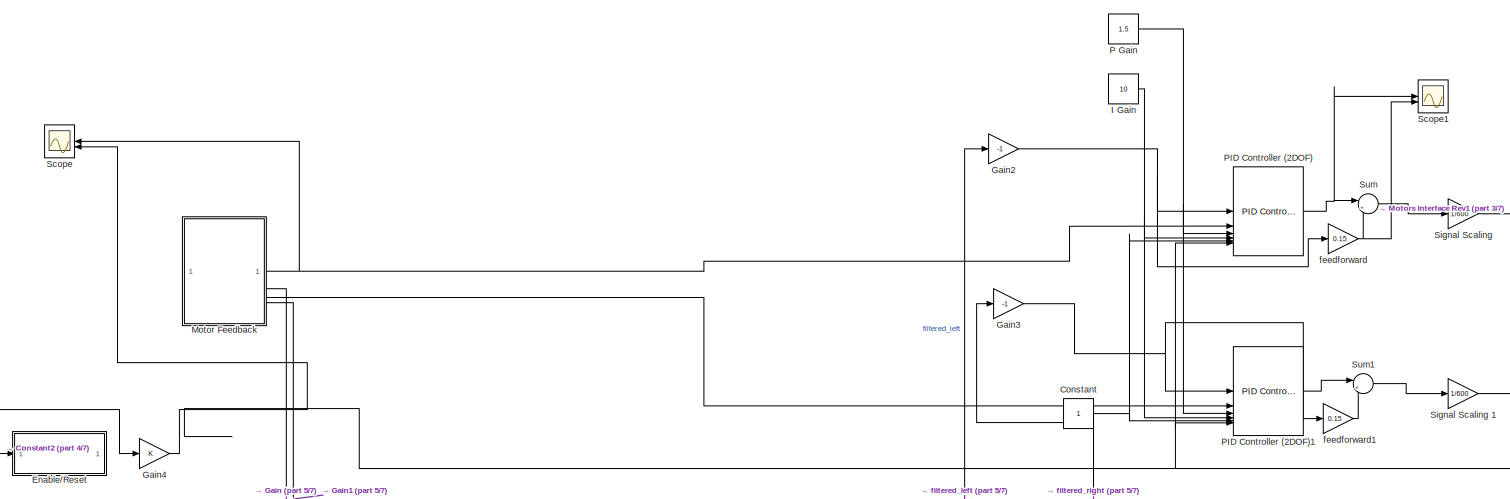
[diagram: root canvas - part 1/7, top center region]
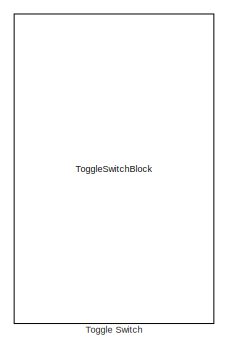
[diagram: root canvas - part 2/7, top left region]
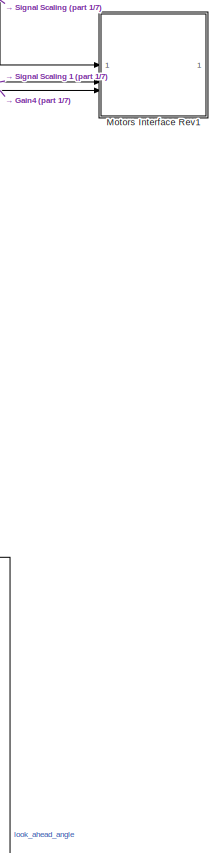
[diagram: root canvas - part 3/7, middle right region]
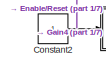
[diagram: root canvas - part 4/7, top left region]
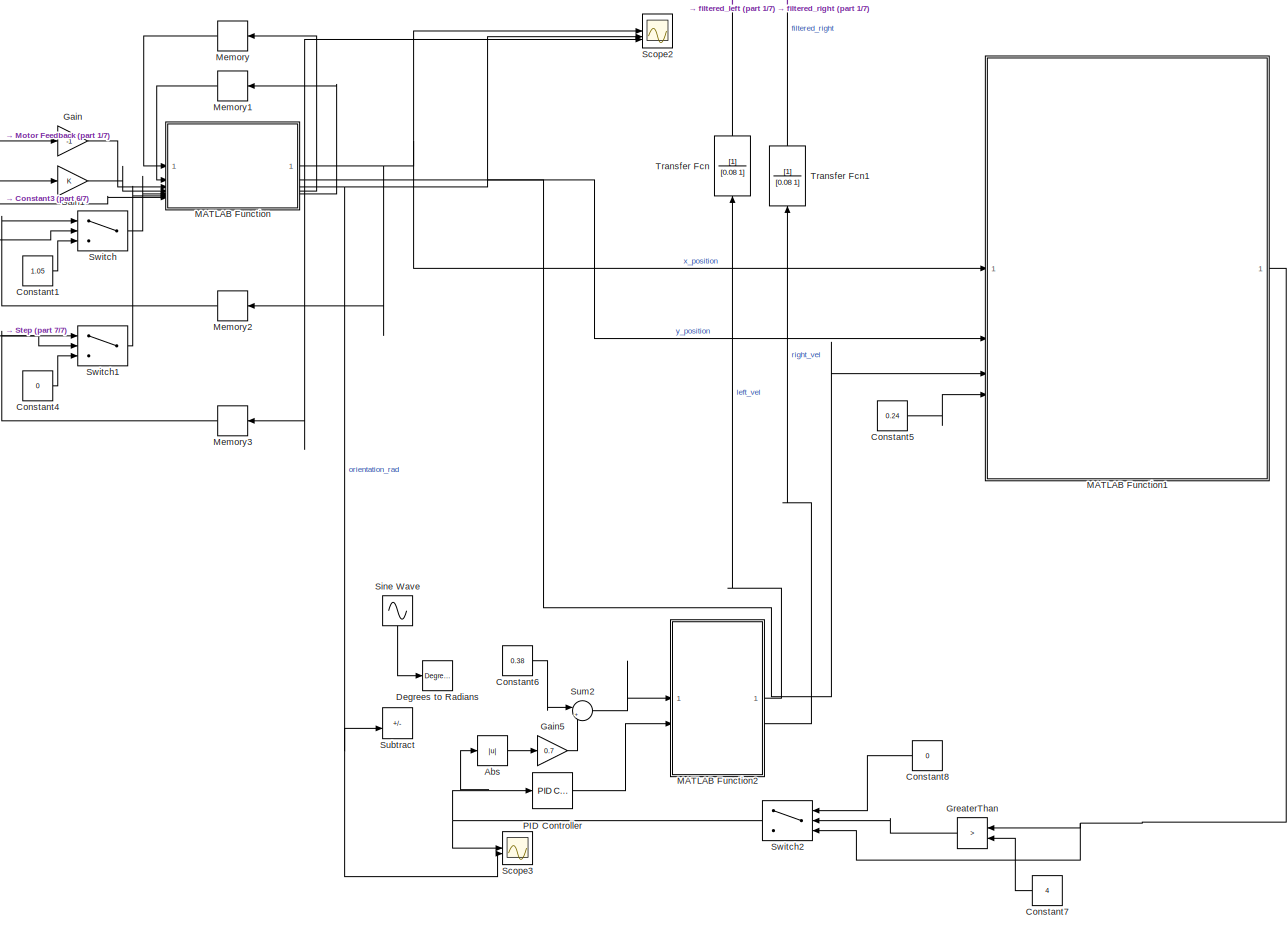
[diagram: root canvas - part 5/7, bottom center region]
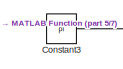
[diagram: root canvas - part 6/7, middle left region]
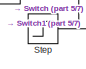
[diagram: root canvas - part 7/7, middle left region]
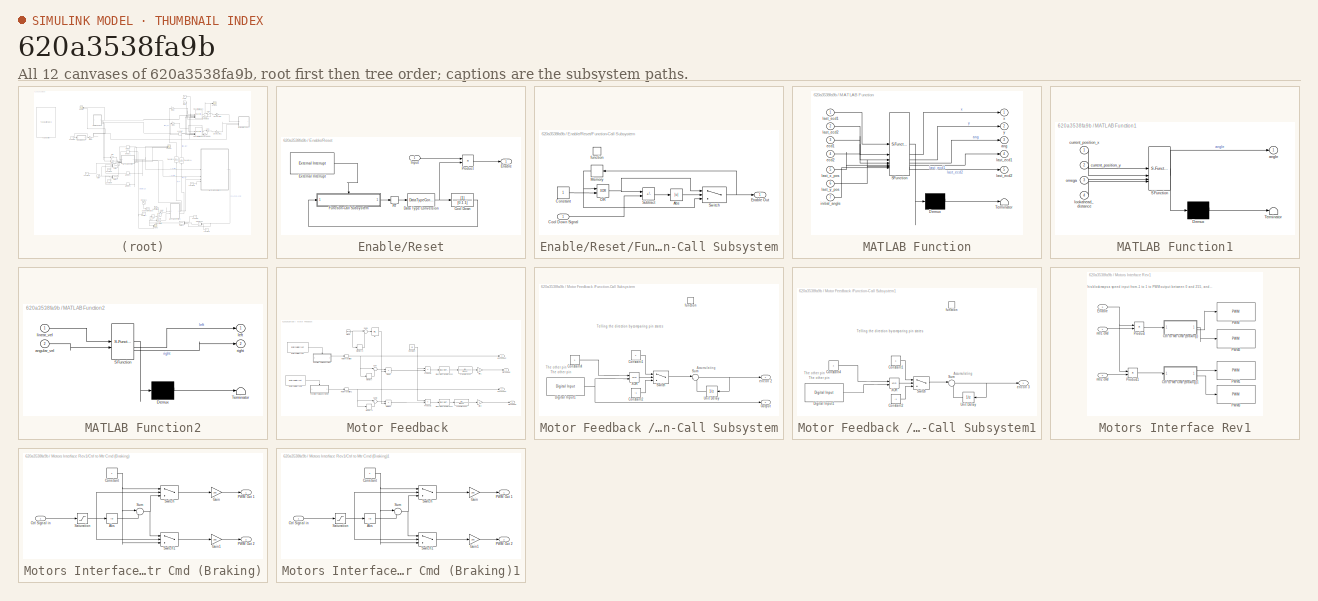
[diagram: thumbnail index - all 12 canvases of the model, root first then tree order]
MODEL slx_620a3538fa9b
KIND model
CONFIG AbsTol = auto
CONFIG EnableMultiTasking = on
CONFIG FixedStep = step_time
CONFIG InitFcn = step_time = 0.01\n\n\n\n
CONFIG MaxStep = auto
CONFIG MinStep = auto
CONFIG RelTol = 1e-3
CONFIG SampleTimeConstraint = Unconstrained
CONFIG SolverName = ode1
CONFIG StartTime = 0.0
CONFIG StopTime = inf
BLOCK [Abs] Abs
  SaturateOnIntegerOverflow = off
BLOCK [Constant] Constant
BLOCK [Constant] Constant1
  Value = 1.05
BLOCK [Constant] Constant2
BLOCK [Constant] Constant3
  Value = pi
BLOCK [Constant] Constant4
  Value = 0
BLOCK [Constant] Constant5
  Value = 0.24
BLOCK [Constant] Constant6
  Value = 0.38
BLOCK [Constant] Constant7
  NameLocation = top
  Value = 4
BLOCK [Constant] Constant8
  NameLocation = top
  Value = 0
BLOCK [Reference] Degrees to Radians  REF=simulink_extras/Transformations/Degrees to
Radians
  SourceBlock = simulink_extras/Transformations/Degrees to\nRadians
  SourceType = DegreesToRadians
BLOCK [SubSystem] Enable//Reset
BLOCK [TransferFcn] Enable//Reset/Cool Down
  Denominator = [0.1 1]
BLOCK [DataTypeConversion] Enable//Reset/Data Type Conversion
  RndMeth = Floor
  SaturateOnIntegerOverflow = off
BLOCK [Outport] Enable//Reset/Enable
BLOCK [Reference] Enable//Reset/External Interrupt  REF=arduinolib/External Interrupt
  SourceBlock = arduinolib/External Interrupt
  SourceType = Arduino Interrupt Block
BLOCK [SubSystem] Enable//Reset/Function-Call Subsystem
  TreatAsAtomicUnit = on
BLOCK [Abs] Enable//Reset/Function-Call Subsystem/Abs
  SaturateOnIntegerOverflow = off
BLOCK [Constant] Enable//Reset/Function-Call Subsystem/Constant
BLOCK [Inport] Enable//Reset/Function-Call Subsystem/Cool Down Signal
BLOCK [Outport] Enable//Reset/Function-Call Subsystem/Enable Out
  InitialOutput = 0
BLOCK [Memory] Enable//Reset/Function-Call Subsystem/Memory
  InheritSampleTime = on
BLOCK [Logic] Enable//Reset/Function-Call Subsystem/OR
  AllPortsSameDT = off
  IconShape = distinctive
  Operator = XOR
  OutDataTypeStr = boolean
BLOCK [Sum] Enable//Reset/Function-Call Subsystem/Subtract
  IconShape = rectangular
  Inputs = +-
BLOCK [Switch] Enable//Reset/Function-Call Subsystem/Switch
  Criteria = u2 > Threshold
  InputSameDT = off
  SaturateOnIntegerOverflow = off
  Threshold = 0.95
BLOCK [TriggerPort] Enable//Reset/Function-Call Subsystem/function
  StatesWhenEnabling = held
  TriggerType = function-call
  VariantControl = (inherit)
BLOCK [Inport] Enable//Reset/Input
BLOCK [Product] Enable//Reset/Product
BLOCK [RateTransition] Enable//Reset/RT
  Deterministic = off
  OutPortSampleTime = step_time
BLOCK [Gain] Gain
  Gain = -1
BLOCK [Gain] Gain1
BLOCK [Gain] Gain2
  Gain = -1
BLOCK [Gain] Gain3
  Gain = -1
BLOCK [Gain] Gain4
BLOCK [Gain] Gain5
  Gain = 0.7
BLOCK [RelationalOperator] GreaterThan
  InputSameDT = off
  NameLocation = top
  Operator = >
  OutDataTypeStr = boolean
  RndMeth = Simplest
BLOCK [Constant] I Gain
  Value = 10
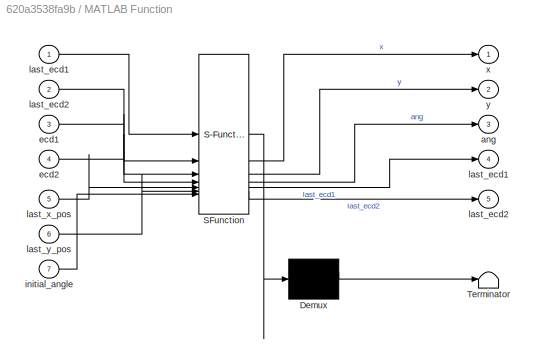
BLOCK [SubSystem] MATLAB Function
  ErrorFcn = Stateflow.Translate.translate
  PermitHierarchicalResolution = ExplicitOnly
  SFBlockType = MATLAB Function
  TreatAsAtomicUnit = on
BLOCK [Demux] MATLAB Function/ Demux 
  Outputs = 1
BLOCK [S-Function] MATLAB Function/ SFunction 
  EnableBusSupport = on
  FunctionName = sf_sfun
  PortCounts = [7 6]
  SFcnIsStateOwnerBlock = off
  SFunctionDeploymentMode = off
  Tag = Stateflow S-Function 1
BLOCK [Terminator] MATLAB Function/ Terminator 
BLOCK [Outport] MATLAB Function/ang
  Port = 3
BLOCK [Inport] MATLAB Function/ecd1
  Port = 3
BLOCK [Inport] MATLAB Function/ecd2
  Port = 4
BLOCK [Inport] MATLAB Function/initial_angle
  Port = 7
BLOCK [Outport] MATLAB Function/last_ecd1
  Port = 4
BLOCK [Inport] MATLAB Function/last_ecd1 
BLOCK [Outport] MATLAB Function/last_ecd2
  Port = 5
BLOCK [Inport] MATLAB Function/last_ecd2 
  Port = 2
BLOCK [Inport] MATLAB Function/last_x_pos
  Port = 5
BLOCK [Inport] MATLAB Function/last_y_pos
  Port = 6
BLOCK [Outport] MATLAB Function/x
BLOCK [Outport] MATLAB Function/y
  Port = 2
BLOCK [SubSystem] MATLAB Function1
  ErrorFcn = Stateflow.Translate.translate
  LibrarySourceBlock = simulink/User-Defined\nFunctions/MATLAB Function
  PermitHierarchicalResolution = ExplicitOnly
  SFBlockType = MATLAB Function
  TreatAsAtomicUnit = on
BLOCK [Demux] MATLAB Function1/ Demux 
  Outputs = 1
BLOCK [S-Function] MATLAB Function1/ SFunction 
  EnableBusSupport = on
  FunctionName = sf_sfun
  PortCounts = [4 2]
  SFcnIsStateOwnerBlock = off
  SFunctionDeploymentMode = off
  Tag = Stateflow S-Function 3
BLOCK [Terminator] MATLAB Function1/ Terminator 
BLOCK [Outport] MATLAB Function1/angle
BLOCK [Inport] MATLAB Function1/current_position_x
BLOCK [Inport] MATLAB Function1/current_position_y
  Port = 2
BLOCK [Inport] MATLAB Function1/lookahead_distance
  Port = 4
BLOCK [Inport] MATLAB Function1/omega
  Port = 3
BLOCK [SubSystem] MATLAB Function2
  ErrorFcn = Stateflow.Translate.translate
  PermitHierarchicalResolution = ExplicitOnly
  SFBlockType = MATLAB Function
  TreatAsAtomicUnit = on
BLOCK [Demux] MATLAB Function2/ Demux 
  Outputs = 1
BLOCK [S-Function] MATLAB Function2/ SFunction 
  EnableBusSupport = on
  FunctionName = sf_sfun
  PortCounts = [2 3]
  SFcnIsStateOwnerBlock = off
  SFunctionDeploymentMode = off
  Tag = Stateflow S-Function 2
BLOCK [Terminator] MATLAB Function2/ Terminator 
BLOCK [Inport] MATLAB Function2/angular_vel
  Port = 2
BLOCK [Outport] MATLAB Function2/left
BLOCK [Inport] MATLAB Function2/linear_vel
BLOCK [Outport] MATLAB Function2/right
  Port = 2
BLOCK [Memory] Memory
  NameLocation = top
BLOCK [Memory] Memory1
  NameLocation = top
BLOCK [Memory] Memory2
  NameLocation = top
BLOCK [Memory] Memory3
  NameLocation = top
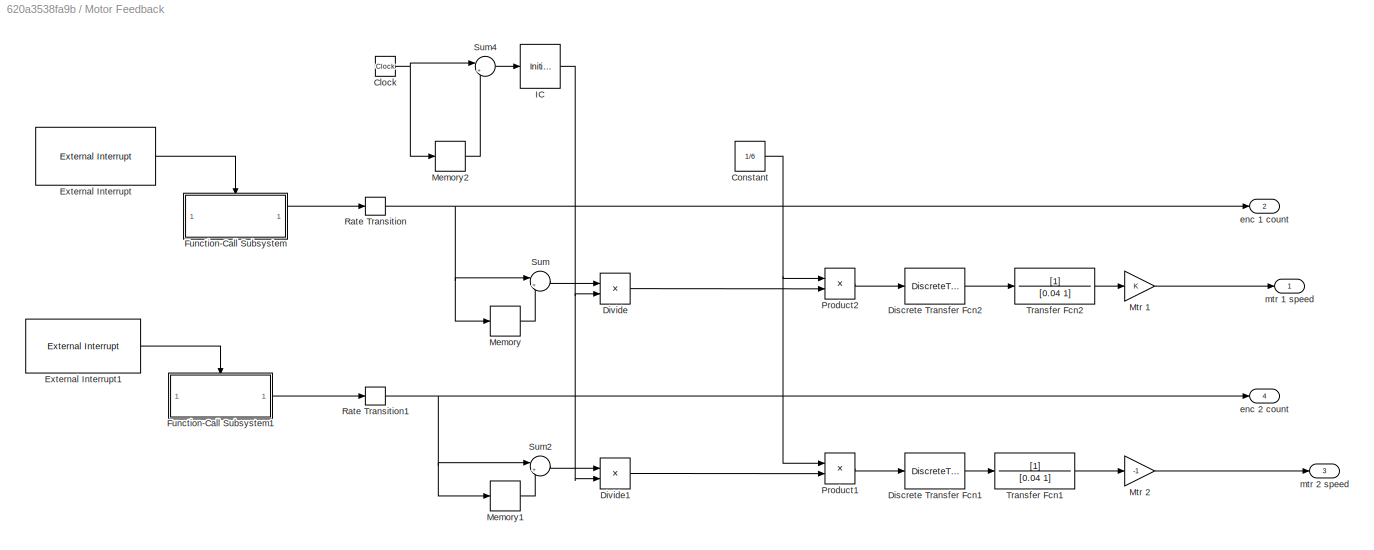
BLOCK [SubSystem] Motor Feedback 
BLOCK [Clock] Motor Feedback /Clock
BLOCK [Constant] Motor Feedback /Constant
  Value = 1/6
BLOCK [DiscreteTransferFcn] Motor Feedback /Discrete Transfer Fcn1
  Denominator = [1 0 0 0 0 0]
  InputPortMap = u0
  Numerator = [1 1 1 1 1 1]
BLOCK [DiscreteTransferFcn] Motor Feedback /Discrete Transfer Fcn2
  Denominator = [1 0 0 0 0 0]
  InputPortMap = u0
  Numerator = [1 1 1 1 1 1]
BLOCK [Product] Motor Feedback /Divide
  Inputs = */
BLOCK [Product] Motor Feedback /Divide1
  Inputs = */
BLOCK [Reference] Motor Feedback /External Interrupt  REF=arduinolib/External Interrupt
  SourceBlock = arduinolib/External Interrupt
  SourceType = Arduino Interrupt Block
BLOCK [Reference] Motor Feedback /External Interrupt1  REF=arduinolib/External Interrupt
  SourceBlock = arduinolib/External Interrupt
  SourceType = Arduino Interrupt Block
BLOCK [SubSystem] Motor Feedback /Function-Call Subsystem
  TreatAsAtomicUnit = on
BLOCK [Constant] Motor Feedback /Function-Call Subsystem/Constant1
BLOCK [Constant] Motor Feedback /Function-Call Subsystem/Constant2
  Value = -1
BLOCK [Constant] Motor Feedback /Function-Call Subsystem/Constant4
BLOCK [Reference] Motor Feedback /Function-Call Subsystem/Digital Input1  REF=arduinolib/Digital Input
  SourceBlock = arduinolib/Digital Input
  SourceType = Arduino Digital Input
BLOCK [Outport] Motor Feedback /Function-Call Subsystem/Output
  InitialOutput = 0
  OutputWhenDisabled = reset
  Port = 2
BLOCK [Sum] Motor Feedback /Function-Call Subsystem/Sum
  Inputs = |++
BLOCK [Switch] Motor Feedback /Function-Call Subsystem/Switch
  Criteria = u2 > Threshold
  InputSameDT = off
  SaturateOnIntegerOverflow = off
BLOCK [UnitDelay] Motor Feedback /Function-Call Subsystem/Unit Delay
  HasFrameUpgradeWarning = on
  SampleTime = -1
BLOCK [Logic] Motor Feedback /Function-Call Subsystem/XOR
  AllPortsSameDT = off
  IconShape = distinctive
  Operator = XOR
  OutDataTypeStr = boolean
BLOCK [Outport] Motor Feedback /Function-Call Subsystem/enc on 2
  InitialOutput = 0
BLOCK [TriggerPort] Motor Feedback /Function-Call Subsystem/function
  TriggerType = function-call
  VariantControl = (inherit)
BLOCK [SubSystem] Motor Feedback /Function-Call Subsystem1
  TreatAsAtomicUnit = on
BLOCK [Constant] Motor Feedback /Function-Call Subsystem1/Constant1
BLOCK [Constant] Motor Feedback /Function-Call Subsystem1/Constant2
  Value = -1
BLOCK [Constant] Motor Feedback /Function-Call Subsystem1/Constant4
BLOCK [Reference] Motor Feedback /Function-Call Subsystem1/Digital Input1  REF=arduinolib/Digital Input
  SourceBlock = arduinolib/Digital Input
  SourceType = Arduino Digital Input
BLOCK [Sum] Motor Feedback /Function-Call Subsystem1/Sum
  Inputs = |++
BLOCK [Switch] Motor Feedback /Function-Call Subsystem1/Switch
  Criteria = u2 > Threshold
  InputSameDT = off
  SaturateOnIntegerOverflow = off
BLOCK [UnitDelay] Motor Feedback /Function-Call Subsystem1/Unit Delay
  HasFrameUpgradeWarning = on
  SampleTime = -1
BLOCK [Logic] Motor Feedback /Function-Call Subsystem1/XOR
  AllPortsSameDT = off
  IconShape = distinctive
  Operator = XOR
  OutDataTypeStr = boolean
BLOCK [Outport] Motor Feedback /Function-Call Subsystem1/enc on 3
  InitialOutput = 0
BLOCK [TriggerPort] Motor Feedback /Function-Call Subsystem1/function
  TriggerType = function-call
  VariantControl = (inherit)
BLOCK [InitialCondition] Motor Feedback /IC
  Value = 0.001
BLOCK [Memory] Motor Feedback /Memory
BLOCK [Memory] Motor Feedback /Memory1
BLOCK [Memory] Motor Feedback /Memory2
BLOCK [Gain] Motor Feedback /Mtr 1
BLOCK [Gain] Motor Feedback /Mtr 2
  Gain = -1
BLOCK [Product] Motor Feedback /Product1
BLOCK [Product] Motor Feedback /Product2
BLOCK [RateTransition] Motor Feedback /Rate Transition
  Deterministic = off
  OutPortSampleTime = step_time
BLOCK [RateTransition] Motor Feedback /Rate Transition1
  Deterministic = off
  OutPortSampleTime = step_time
BLOCK [Sum] Motor Feedback /Sum
  Inputs = |+-
BLOCK [Sum] Motor Feedback /Sum2
  Inputs = |+-
BLOCK [Sum] Motor Feedback /Sum4
  Inputs = |+-
BLOCK [TransferFcn] Motor Feedback /Transfer Fcn1
  Denominator = [0.04 1]
BLOCK [TransferFcn] Motor Feedback /Transfer Fcn2
  Denominator = [0.04 1]
BLOCK [Outport] Motor Feedback /enc 1 count
  Port = 2
BLOCK [Outport] Motor Feedback /enc 2 count
  Port = 4
BLOCK [Outport] Motor Feedback /mtr 1 speed
BLOCK [Outport] Motor Feedback /mtr 2 speed
  Port = 3
BLOCK [SubSystem] Motors Interface Rev1
BLOCK [SubSystem] Motors Interface Rev1/Ctrl to Mtr Cmd (Braking)
BLOCK [Abs] Motors Interface Rev1/Ctrl to Mtr Cmd (Braking)/Abs
  SaturateOnIntegerOverflow = off
BLOCK [Constant] Motors Interface Rev1/Ctrl to Mtr Cmd (Braking)/Constant
BLOCK [Inport] Motors Interface Rev1/Ctrl to Mtr Cmd (Braking)/Ctrl Signal in
BLOCK [Gain] Motors Interface Rev1/Ctrl to Mtr Cmd (Braking)/Gain
  Gain = 255
BLOCK [Gain] Motors Interface Rev1/Ctrl to Mtr Cmd (Braking)/Gain1
  Gain = 255
BLOCK [Outport] Motors Interface Rev1/Ctrl to Mtr Cmd (Braking)/PWM Out 1
BLOCK [Outport] Motors Interface Rev1/Ctrl to Mtr Cmd (Braking)/PWM Out 2
  Port = 2
BLOCK [Saturate] Motors Interface Rev1/Ctrl to Mtr Cmd (Braking)/Saturation
  LowerLimit = -1
  UpperLimit = 1
BLOCK [Sum] Motors Interface Rev1/Ctrl to Mtr Cmd (Braking)/Sum
  Inputs = |+-
BLOCK [Switch] Motors Interface Rev1/Ctrl to Mtr Cmd (Braking)/Switch
  Criteria = u2 > Threshold
  InputSameDT = off
  SaturateOnIntegerOverflow = off
BLOCK [Switch] Motors Interface Rev1/Ctrl to Mtr Cmd (Braking)/Switch1
  Criteria = u2 > Threshold
  InputSameDT = off
  SaturateOnIntegerOverflow = off
BLOCK [SubSystem] Motors Interface Rev1/Ctrl to Mtr Cmd (Braking)1
BLOCK [Abs] Motors Interface Rev1/Ctrl to Mtr Cmd (Braking)1/Abs
  SaturateOnIntegerOverflow = off
BLOCK [Constant] Motors Interface Rev1/Ctrl to Mtr Cmd (Braking)1/Constant
BLOCK [Inport] Motors Interface Rev1/Ctrl to Mtr Cmd (Braking)1/Ctrl Signal in
BLOCK [Gain] Motors Interface Rev1/Ctrl to Mtr Cmd (Braking)1/Gain
  Gain = 255
BLOCK [Gain] Motors Interface Rev1/Ctrl to Mtr Cmd (Braking)1/Gain1
  Gain = 255
BLOCK [Outport] Motors Interface Rev1/Ctrl to Mtr Cmd (Braking)1/PWM Out 1
BLOCK [Outport] Motors Interface Rev1/Ctrl to Mtr Cmd (Braking)1/PWM Out 2
  Port = 2
BLOCK [Saturate] Motors Interface Rev1/Ctrl to Mtr Cmd (Braking)1/Saturation
  LowerLimit = -1
  UpperLimit = 1
BLOCK [Sum] Motors Interface Rev1/Ctrl to Mtr Cmd (Braking)1/Sum
  Inputs = |+-
BLOCK [Switch] Motors Interface Rev1/Ctrl to Mtr Cmd (Braking)1/Switch
  Criteria = u2 > Threshold
  InputSameDT = off
  SaturateOnIntegerOverflow = off
BLOCK [Switch] Motors Interface Rev1/Ctrl to Mtr Cmd (Braking)1/Switch1
  Criteria = u2 > Threshold
  InputSameDT = off
  SaturateOnIntegerOverflow = off
BLOCK [Inport] Motors Interface Rev1/Enable
  Port = 3
BLOCK [Reference] Motors Interface Rev1/PWM  REF=arduinolib/PWM
  SourceBlock = arduinolib/PWM
  SourceType = Arduino PWM
BLOCK [Reference] Motors Interface Rev1/PWM1  REF=arduinolib/PWM
  SourceBlock = arduinolib/PWM
  SourceType = Arduino PWM
BLOCK [Reference] Motors Interface Rev1/PWM2  REF=arduinolib/PWM
  SourceBlock = arduinolib/PWM
  SourceType = Arduino PWM
BLOCK [Reference] Motors Interface Rev1/PWM3  REF=arduinolib/PWM
  SourceBlock = arduinolib/PWM
  SourceType = Arduino PWM
BLOCK [Product] Motors Interface Rev1/Product
BLOCK [Product] Motors Interface Rev1/Product1
BLOCK [Inport] Motors Interface Rev1/mtr1 cmd
BLOCK [Inport] Motors Interface Rev1/mtr2 cmd
  Port = 2
BLOCK [Constant] P Gain
  Value = 1.5
BLOCK [Reference] PID Controller  REF=slpidlib/PID Controller
  LibrarySourceBlock = simulink/Continuous/PID Controller
  SourceBlock = slpidlib/PID Controller
  SourceType = PID 1dof
BLOCK [Reference] PID Controller (2DOF)  REF=slpidlib/PID Controller (2DOF)
  LibrarySourceBlock = simulink/Continuous/PID Controller (2DOF)
  SourceBlock = slpidlib/PID Controller (2DOF)
  SourceType = PID 2dof
BLOCK [Reference] PID Controller (2DOF)1  REF=slpidlib/PID Controller (2DOF)
  LibrarySourceBlock = simulink/Continuous/PID Controller (2DOF)
  SourceBlock = slpidlib/PID Controller (2DOF)
  SourceType = PID 2dof
BLOCK [Scope] Scope
  Floating = off
  NameLocation = top
  NumInputPorts = 2
  ScopeSpecificationString = Simulink.scopes.TimeScopeBlockCfg('CurrentConfiguration', extmgr.ConfigurationSet(extmgr.Configuration('Core','General UI',true),extmgr.Configuration('Core','Source UI',true),extmgr.Configuration('Sources','WiredSimulink',true),extmgr.Configuration('Visuals','Time Domain',true,'SerializedDisplays',{struct('MinYLimReal','-1.00000','MaxYLimReal','1.00000','YLabelReal','','MinYLimMag','0.00000','MaxY...<+1432ch>
BLOCK [Scope] Scope1
  Floating = off
  NumInputPorts = 2
  ScopeSpecificationString = Simulink.scopes.TimeScopeBlockCfg('CurrentConfiguration', extmgr.ConfigurationSet(extmgr.Configuration('Core','General UI',true),extmgr.Configuration('Core','Source UI',true),extmgr.Configuration('Sources','WiredSimulink',true,'DataLoggingVariableName','ScopeData1'),extmgr.Configuration('Visuals','Time Domain',true,'SerializedDisplays',{struct('MinYLimReal','-8545.5','MaxYLimReal','949.5','YLabelR...<+1443ch>
BLOCK [Scope] Scope2
  Floating = off
  NumInputPorts = 3
  ScopeSpecificationString = Simulink.scopes.TimeScopeBlockCfg('CurrentConfiguration', extmgr.ConfigurationSet(extmgr.Configuration('Core','General UI',true),extmgr.Configuration('Core','Source UI',true),extmgr.Configuration('Sources','WiredSimulink',true,'DataLoggingVariableName','ScopeData2'),extmgr.Configuration('Visuals','Time Domain',true),extmgr.Configuration('Tools','Plot Navigation',true),extmgr.Configuration('Tools',...<+40ch>
BLOCK [Scope] Scope3
  Floating = off
  NumInputPorts = 2
  ScopeSpecificationString = Simulink.scopes.TimeScopeBlockCfg('CurrentConfiguration', extmgr.ConfigurationSet(extmgr.Configuration('Core','General UI',true),extmgr.Configuration('Core','Source UI',true),extmgr.Configuration('Sources','WiredSimulink',true,'DataLoggingVariableName','ScopeData1'),extmgr.Configuration('Visuals','Time Domain',true,'SerializedDisplays',{struct('MinYLimReal','-2.16688','MaxYLimReal','3.81729','YLab...<+1384ch>
BLOCK [Gain] Signal Scaling
  Gain = 1/600
BLOCK [Gain] Signal Scaling 1
  Gain = 1/600
BLOCK [Sin] Sine Wave
  Amplitude = 5
  Frequency = 3
  NameLocation = left
  SampleTime = 0
BLOCK [Step] Step
  SampleTime = 0
  Time = 0.01
BLOCK [Sum] Subtract
  Commented = on
  IconShape = rectangular
  Inputs = +-
BLOCK [Sum] Sum
  Inputs = |++
BLOCK [Sum] Sum1
  Inputs = |++
BLOCK [Sum] Sum2
  Inputs = |+-
BLOCK [Switch] Switch
  Criteria = u2 > Threshold
  InputSameDT = off
  SaturateOnIntegerOverflow = off
BLOCK [Switch] Switch1
  Criteria = u2 > Threshold
  InputSameDT = off
  SaturateOnIntegerOverflow = off
BLOCK [Switch] Switch2
  Criteria = u2 > Threshold
  InputSameDT = off
  NameLocation = top
  SaturateOnIntegerOverflow = off
BLOCK [ToggleSwitchBlock] Toggle Switch
BLOCK [TransferFcn] Transfer Fcn
  Denominator = [0.08 1]
  NameLocation = right
BLOCK [TransferFcn] Transfer Fcn1
  Denominator = [0.08 1]
  NameLocation = right
BLOCK [Gain] feedforward
  Gain = 0.15
BLOCK [Gain] feedforward1
  Gain = 0.15
ANNOTATION Motor Feedback /Function-Call Subsystem: Accumulating
ANNOTATION Motor Feedback /Function-Call Subsystem: Telling the direction by comparing pin states
ANNOTATION Motor Feedback /Function-Call Subsystem: The other pin
ANNOTATION Motor Feedback /Function-Call Subsystem1: Accumulating
ANNOTATION Motor Feedback /Function-Call Subsystem1: Telling the direction by comparing pin states
ANNOTATION Motor Feedback /Function-Call Subsystem1: The other pin
ANNOTATION Motors Interface Rev1: This block maps a speed input from -1 to 1 to PWM output between 0 and 255, and set pin states for direction
LINE Abs:1 -> Gain5:1
LINE Constant1:1 -> Switch:3
NET Constant2:1 -> Enable//Reset:1, Gain4:1
LINE Constant3:1 -> MATLAB Function:7
LINE Constant4:1 -> Switch1:3
LINE Constant5:1 -> MATLAB Function1:4
LINE Constant6:1 -> Sum2:1
LINE Constant7:1 -> GreaterThan:2
LINE Constant8:1 -> Switch2:1
NET Constant:1 -> PID Controller (2DOF)1:5, PID Controller (2DOF):5
LINE Enable//Reset/Cool Down:1 -> Enable//Reset/Function-Call Subsystem:1
NET Enable//Reset/Data Type Conversion:1 -> Enable//Reset/Cool Down:1, Enable//Reset/Product:2
LINE Enable//Reset/External Interrupt:1 -> Enable//Reset/Function-Call Subsystem:trigger
LINE Enable//Reset/Function-Call Subsystem/Abs:1 -> Enable//Reset/Function-Call Subsystem/Switch:2
LINE Enable//Reset/Function-Call Subsystem/Constant:1 -> Enable//Reset/Function-Call Subsystem/OR:2
LINE Enable//Reset/Function-Call Subsystem/Cool Down Signal:1 -> Enable//Reset/Function-Call Subsystem/Subtract:2
NET Enable//Reset/Function-Call Subsystem/Memory:1 -> Enable//Reset/Function-Call Subsystem/OR:1, Enable//Reset/Function-Call Subsystem/Switch:3
NET Enable//Reset/Function-Call Subsystem/OR:1 -> Enable//Reset/Function-Call Subsystem/Subtract:1, Enable//Reset/Function-Call Subsystem/Switch:1
LINE Enable//Reset/Function-Call Subsystem/Subtract:1 -> Enable//Reset/Function-Call Subsystem/Abs:1
NET Enable//Reset/Function-Call Subsystem/Switch:1 -> Enable//Reset/Function-Call Subsystem/Enable Out:1, Enable//Reset/Function-Call Subsystem/Memory:1
LINE Enable//Reset/Function-Call Subsystem:1 -> Enable//Reset/RT:1
LINE Enable//Reset/Input:1 -> Enable//Reset/Product:1
LINE Enable//Reset/Product:1 -> Enable//Reset/Enable:1
LINE Enable//Reset/RT:1 -> Enable//Reset/Data Type Conversion:1
LINE Gain1:1 -> MATLAB Function:4
NET Gain2:1 -> PID Controller (2DOF):1, feedforward:1
NET Gain3:1 -> PID Controller (2DOF)1:1, feedforward1:1
NET Gain4:1 -> Motors Interface Rev1:3, PID Controller (2DOF)1:6, PID Controller (2DOF):6, Scope:2
LINE Gain5:1 -> Sum2:2
LINE Gain:1 -> MATLAB Function:3
LINE GreaterThan:1 -> Switch2:2
NET I Gain:1 -> PID Controller (2DOF)1:4, PID Controller (2DOF):4
NET MATLAB Function1:1 -> GreaterThan:1, Switch2:3
LINE MATLAB Function2:1 -> Transfer Fcn:1
LINE MATLAB Function2:2 -> Transfer Fcn1:1
NET MATLAB Function:1 -> MATLAB Function1:1, Memory2:1, Scope2:1
NET MATLAB Function:2 -> MATLAB Function1:2, Memory3:1, Scope2:3
NET MATLAB Function:3 -> MATLAB Function1:3, Scope2:2, Scope3:2, Subtract:2
LINE MATLAB Function:4 -> Memory:1
LINE MATLAB Function:5 -> Memory1:1
LINE Memory1:1 -> MATLAB Function:2
LINE Memory2:1 -> Switch:1
LINE Memory3:1 -> Switch1:1
LINE Memory:1 -> MATLAB Function:1
NET Motor Feedback /Clock:1 -> Motor Feedback /Memory2:1, Motor Feedback /Sum4:1
NET Motor Feedback /Constant:1 -> Motor Feedback /Product1:1, Motor Feedback /Product2:1
LINE Motor Feedback /Discrete Transfer Fcn1:1 -> Motor Feedback /Transfer Fcn1:1
LINE Motor Feedback /Discrete Transfer Fcn2:1 -> Motor Feedback /Transfer Fcn2:1
LINE Motor Feedback /Divide1:1 -> Motor Feedback /Product1:2
LINE Motor Feedback /Divide:1 -> Motor Feedback /Product2:2
LINE Motor Feedback /External Interrupt1:1 -> Motor Feedback /Function-Call Subsystem1:trigger
LINE Motor Feedback /External Interrupt:1 -> Motor Feedback /Function-Call Subsystem:trigger
LINE Motor Feedback /Function-Call Subsystem/Constant1:1 -> Motor Feedback /Function-Call Subsystem/Switch:1
LINE Motor Feedback /Function-Call Subsystem/Constant2:1 -> Motor Feedback /Function-Call Subsystem/Switch:3
LINE Motor Feedback /Function-Call Subsystem/Constant4:1 -> Motor Feedback /Function-Call Subsystem/XOR:1
NET Motor Feedback /Function-Call Subsystem/Digital Input1:1 -> Motor Feedback /Function-Call Subsystem/Output:1, Motor Feedback /Function-Call Subsystem/XOR:2
NET Motor Feedback /Function-Call Subsystem/Sum:1 -> Motor Feedback /Function-Call Subsystem/Unit Delay:1, Motor Feedback /Function-Call Subsystem/enc on 2:1
LINE Motor Feedback /Function-Call Subsystem/Switch:1 -> Motor Feedback /Function-Call Subsystem/Sum:1
LINE Motor Feedback /Function-Call Subsystem/Unit Delay:1 -> Motor Feedback /Function-Call Subsystem/Sum:2
LINE Motor Feedback /Function-Call Subsystem/XOR:1 -> Motor Feedback /Function-Call Subsystem/Switch:2
LINE Motor Feedback /Function-Call Subsystem1/Constant1:1 -> Motor Feedback /Function-Call Subsystem1/Switch:1
LINE Motor Feedback /Function-Call Subsystem1/Constant2:1 -> Motor Feedback /Function-Call Subsystem1/Switch:3
LINE Motor Feedback /Function-Call Subsystem1/Constant4:1 -> Motor Feedback /Function-Call Subsystem1/XOR:1
LINE Motor Feedback /Function-Call Subsystem1/Digital Input1:1 -> Motor Feedback /Function-Call Subsystem1/XOR:2
NET Motor Feedback /Function-Call Subsystem1/Sum:1 -> Motor Feedback /Function-Call Subsystem1/Unit Delay:1, Motor Feedback /Function-Call Subsystem1/enc on 3:1
LINE Motor Feedback /Function-Call Subsystem1/Switch:1 -> Motor Feedback /Function-Call Subsystem1/Sum:1
LINE Motor Feedback /Function-Call Subsystem1/Unit Delay:1 -> Motor Feedback /Function-Call Subsystem1/Sum:2
LINE Motor Feedback /Function-Call Subsystem1/XOR:1 -> Motor Feedback /Function-Call Subsystem1/Switch:2
LINE Motor Feedback /Function-Call Subsystem1:1 -> Motor Feedback /Rate Transition1:1
LINE Motor Feedback /Function-Call Subsystem:1 -> Motor Feedback /Rate Transition:1
NET Motor Feedback /IC:1 -> Motor Feedback /Divide1:2, Motor Feedback /Divide:2
LINE Motor Feedback /Memory1:1 -> Motor Feedback /Sum2:2
LINE Motor Feedback /Memory2:1 -> Motor Feedback /Sum4:2
LINE Motor Feedback /Memory:1 -> Motor Feedback /Sum:2
LINE Motor Feedback /Mtr 1:1 -> Motor Feedback /mtr 1 speed:1
LINE Motor Feedback /Mtr 2:1 -> Motor Feedback /mtr 2 speed:1
LINE Motor Feedback /Product1:1 -> Motor Feedback /Discrete Transfer Fcn1:1
LINE Motor Feedback /Product2:1 -> Motor Feedback /Discrete Transfer Fcn2:1
NET Motor Feedback /Rate Transition1:1 -> Motor Feedback /Memory1:1, Motor Feedback /Sum2:1, Motor Feedback /enc 2 count:1
NET Motor Feedback /Rate Transition:1 -> Motor Feedback /Memory:1, Motor Feedback /Sum:1, Motor Feedback /enc 1 count:1
LINE Motor Feedback /Sum2:1 -> Motor Feedback /Divide1:1
LINE Motor Feedback /Sum4:1 -> Motor Feedback /IC:1
LINE Motor Feedback /Sum:1 -> Motor Feedback /Divide:1
LINE Motor Feedback /Transfer Fcn1:1 -> Motor Feedback /Mtr 2:1
LINE Motor Feedback /Transfer Fcn2:1 -> Motor Feedback /Mtr 1:1
NET Motor Feedback :1 -> PID Controller (2DOF):2, Scope:1
LINE Motor Feedback :2 -> Gain:1
LINE Motor Feedback :3 -> PID Controller (2DOF)1:2
LINE Motor Feedback :4 -> Gain1:1
LINE Motors Interface Rev1/Ctrl to Mtr Cmd (Braking)/Abs:1 -> Motors Interface Rev1/Ctrl to Mtr Cmd (Braking)/Sum:2
NET Motors Interface Rev1/Ctrl to Mtr Cmd (Braking)/Constant:1 -> Motors Interface Rev1/Ctrl to Mtr Cmd (Braking)/Sum:1, Motors Interface Rev1/Ctrl to Mtr Cmd (Braking)/Switch1:3, Motors Interface Rev1/Ctrl to Mtr Cmd (Braking)/Switch:1
LINE Motors Interface Rev1/Ctrl to Mtr Cmd (Braking)/Ctrl Signal in:1 -> Motors Interface Rev1/Ctrl to Mtr Cmd (Braking)/Saturation:1
LINE Motors Interface Rev1/Ctrl to Mtr Cmd (Braking)/Gain1:1 -> Motors Interface Rev1/Ctrl to Mtr Cmd (Braking)/PWM Out 2:1
LINE Motors Interface Rev1/Ctrl to Mtr Cmd (Braking)/Gain:1 -> Motors Interface Rev1/Ctrl to Mtr Cmd (Braking)/PWM Out 1:1
NET Motors Interface Rev1/Ctrl to Mtr Cmd (Braking)/Saturation:1 -> Motors Interface Rev1/Ctrl to Mtr Cmd (Braking)/Abs:1, Motors Interface Rev1/Ctrl to Mtr Cmd (Braking)/Switch1:2, Motors Interface Rev1/Ctrl to Mtr Cmd (Braking)/Switch:2
NET Motors Interface Rev1/Ctrl to Mtr Cmd (Braking)/Sum:1 -> Motors Interface Rev1/Ctrl to Mtr Cmd (Braking)/Switch1:1, Motors Interface Rev1/Ctrl to Mtr Cmd (Braking)/Switch:3
LINE Motors Interface Rev1/Ctrl to Mtr Cmd (Braking)/Switch1:1 -> Motors Interface Rev1/Ctrl to Mtr Cmd (Braking)/Gain1:1
LINE Motors Interface Rev1/Ctrl to Mtr Cmd (Braking)/Switch:1 -> Motors Interface Rev1/Ctrl to Mtr Cmd (Braking)/Gain:1
LINE Motors Interface Rev1/Ctrl to Mtr Cmd (Braking)1/Abs:1 -> Motors Interface Rev1/Ctrl to Mtr Cmd (Braking)1/Sum:2
NET Motors Interface Rev1/Ctrl to Mtr Cmd (Braking)1/Constant:1 -> Motors Interface Rev1/Ctrl to Mtr Cmd (Braking)1/Sum:1, Motors Interface Rev1/Ctrl to Mtr Cmd (Braking)1/Switch1:3, Motors Interface Rev1/Ctrl to Mtr Cmd (Braking)1/Switch:1
LINE Motors Interface Rev1/Ctrl to Mtr Cmd (Braking)1/Ctrl Signal in:1 -> Motors Interface Rev1/Ctrl to Mtr Cmd (Braking)1/Saturation:1
LINE Motors Interface Rev1/Ctrl to Mtr Cmd (Braking)1/Gain1:1 -> Motors Interface Rev1/Ctrl to Mtr Cmd (Braking)1/PWM Out 2:1
LINE Motors Interface Rev1/Ctrl to Mtr Cmd (Braking)1/Gain:1 -> Motors Interface Rev1/Ctrl to Mtr Cmd (Braking)1/PWM Out 1:1
NET Motors Interface Rev1/Ctrl to Mtr Cmd (Braking)1/Saturation:1 -> Motors Interface Rev1/Ctrl to Mtr Cmd (Braking)1/Abs:1, Motors Interface Rev1/Ctrl to Mtr Cmd (Braking)1/Switch1:2, Motors Interface Rev1/Ctrl to Mtr Cmd (Braking)1/Switch:2
NET Motors Interface Rev1/Ctrl to Mtr Cmd (Braking)1/Sum:1 -> Motors Interface Rev1/Ctrl to Mtr Cmd (Braking)1/Switch1:1, Motors Interface Rev1/Ctrl to Mtr Cmd (Braking)1/Switch:3
LINE Motors Interface Rev1/Ctrl to Mtr Cmd (Braking)1/Switch1:1 -> Motors Interface Rev1/Ctrl to Mtr Cmd (Braking)1/Gain1:1
LINE Motors Interface Rev1/Ctrl to Mtr Cmd (Braking)1/Switch:1 -> Motors Interface Rev1/Ctrl to Mtr Cmd (Braking)1/Gain:1
LINE Motors Interface Rev1/Ctrl to Mtr Cmd (Braking)1:1 -> Motors Interface Rev1/PWM1:1
LINE Motors Interface Rev1/Ctrl to Mtr Cmd (Braking)1:2 -> Motors Interface Rev1/PWM3:1
LINE Motors Interface Rev1/Ctrl to Mtr Cmd (Braking):1 -> Motors Interface Rev1/PWM2:1
LINE Motors Interface Rev1/Ctrl to Mtr Cmd (Braking):2 -> Motors Interface Rev1/PWM:1
NET Motors Interface Rev1/Enable:1 -> Motors Interface Rev1/Product1:1, Motors Interface Rev1/Product:1
LINE Motors Interface Rev1/Product1:1 -> Motors Interface Rev1/Ctrl to Mtr Cmd (Braking)1:1
LINE Motors Interface Rev1/Product:1 -> Motors Interface Rev1/Ctrl to Mtr Cmd (Braking):1
LINE Motors Interface Rev1/mtr1 cmd:1 -> Motors Interface Rev1/Product:2
LINE Motors Interface Rev1/mtr2 cmd:1 -> Motors Interface Rev1/Product1:2
NET P Gain:1 -> PID Controller (2DOF)1:3, PID Controller (2DOF):3
LINE PID Controller (2DOF)1:1 -> Sum1:1
NET PID Controller (2DOF):1 -> Scope1:1, Sum:1
LINE PID Controller:1 -> MATLAB Function2:2
LINE Signal Scaling 1:1 -> Motors Interface Rev1:2
LINE Signal Scaling:1 -> Motors Interface Rev1:1
LINE Sine Wave:1 -> Degrees to Radians:1
NET Step:1 -> Switch1:2, Switch:2
LINE Sum1:1 -> Signal Scaling 1:1
LINE Sum2:1 -> MATLAB Function2:1
LINE Sum:1 -> Signal Scaling:1
LINE Switch1:1 -> MATLAB Function:6
NET Switch2:1 -> Abs:1, PID Controller:1, Scope3:1
LINE Switch:1 -> MATLAB Function:5
LINE Transfer Fcn1:1 -> Gain3:1
LINE Transfer Fcn:1 -> Gain2:1
LINE feedforward1:1 -> Sum1:2
NET feedforward:1 -> Scope1:2, Sum:2
note: NET lines group one-source signal fan-out (src -> all destinations, sorted); 1:1 wires keep LINE
CHART MATLAB Function states=1 transitions=1
  STATE_LABEL 'eML_blk_kernel()'
  STATE_LABEL 'SCRIPT:\nfunction [x, y, ang, last_ecd1, last_ecd2] = odometry(last_ecd1, last_ecd2, ecd1, ecd2, last_x_pos, last_y_pos, initial_angle)\n\nd_w = 0.042;\nd_r = 0.158;\nl_w = d_w * pi;\nleft_ratio = 45.607;\nright_ratio = 40.286;\nleft_tick_to_meter = 1/301;\nright_tick_to_meter = 1/256.67;\n\nleft =  (ecd1 - last_ecd1) * left_tick_to_meter;\nright =  (ecd2 - last_ecd2) * right_tick_to_meter;\ndist = (left + rig...<+175ch>'
CHART MATLAB Function2 states=1 transitions=1
  STATE_LABEL 'eML_blk_kernel()'
  STATE_LABEL 'SCRIPT:\nfunction [left, right] = robot_control(linear_vel, angular_vel)\n    left = linear_vel - 1.5*angular_vel;  %1.5\n    right = linear_vel + 0.5*angular_vel; %0.5\n    left = left*600;\n    right = right*600;\n    % if right < 0\n    %     right = 0;\n    % end\nend\n'
CHART MATLAB Function1 states=1 transitions=1
  STATE_LABEL 'eML_blk_kernel()'
  STATE_LABEL 'SCRIPT:\nfunction angle = findLookAheadPoint(current_position_x, current_position_y, omega, lookahead_distance)\n%%%%%%%%%%%%% Function Definition Start Here %%%%%%%%%%%%%\n    function inrange = is_in_range(x, x_min, x_max)\n    \n    inrange = x<=max(x_min,x_max+0.1) && x>=min(x_min-0.1,x_max);\nend\n\nfunction is_ahead = isPointAhead(point, current_position, omega)\n% Calculate direction vectors\ndirecti...<+2529ch>'
CHART  states=0 transitions=0
CHART  states=0 transitions=0
CHART  states=0 transitions=0
